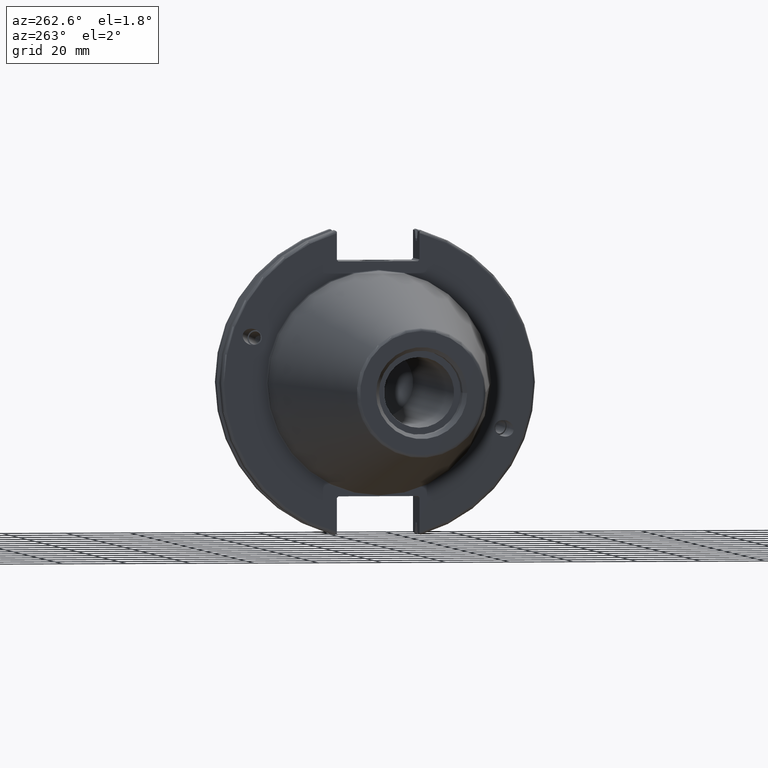
[diagram: clean part render]
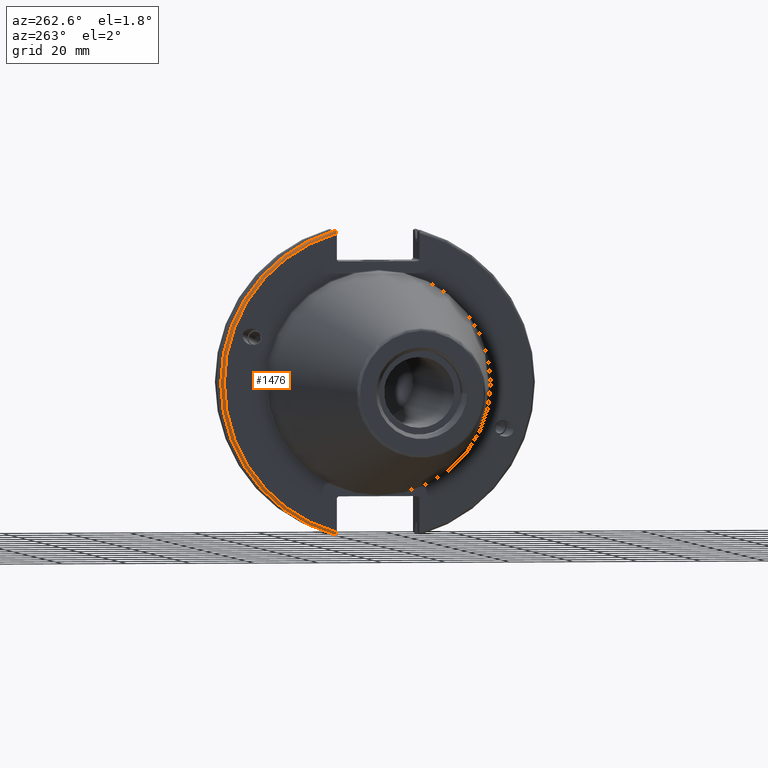
[diagram: same view with one face highlighted and labeled with its STEP entity id]
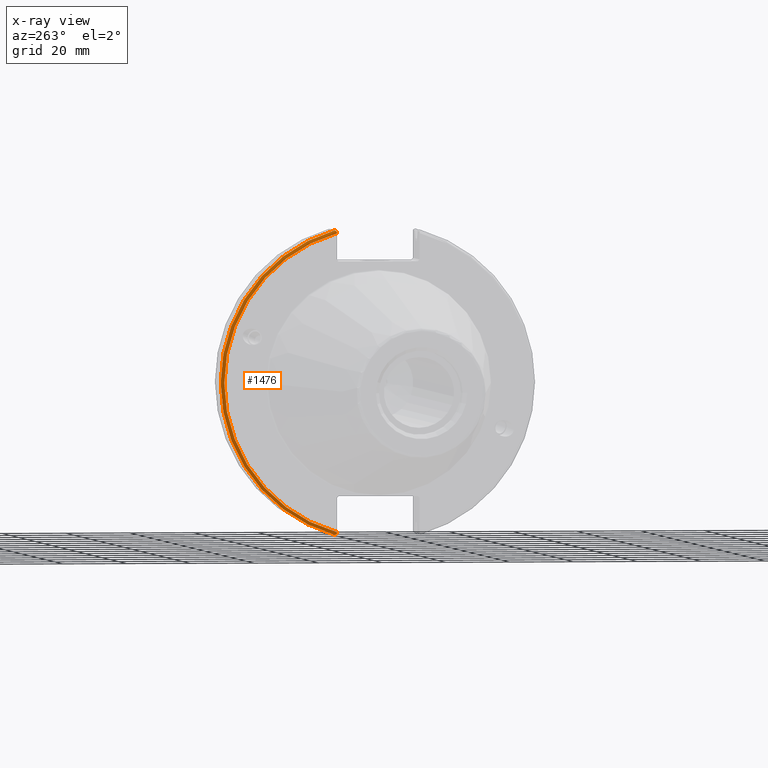
[diagram: x-ray of the same camera — body ghosted, the highlighted face saturated]
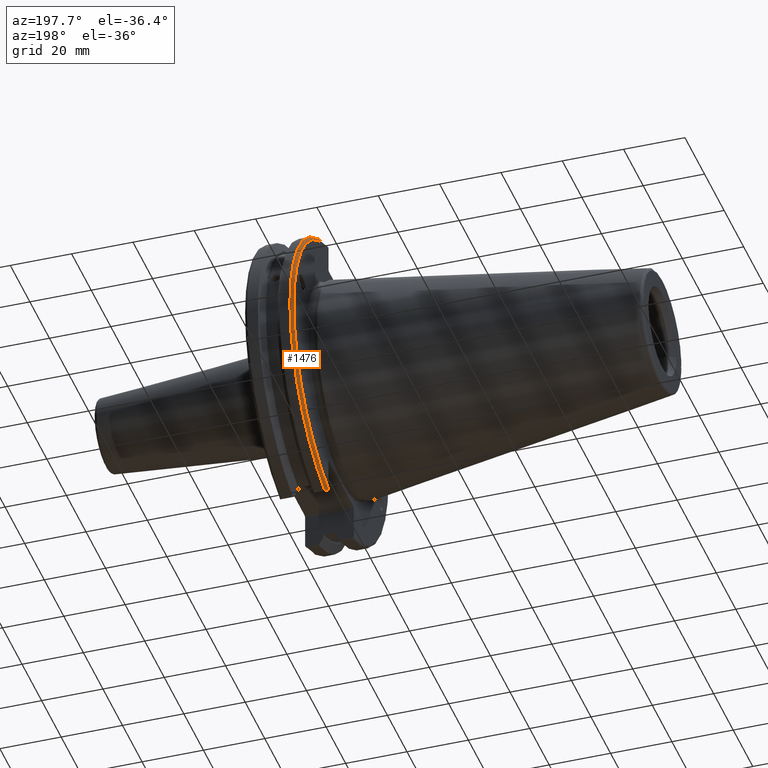
[diagram: same view with one face highlighted and labeled with its STEP entity id]
A machine part, auxiliary view. The second image highlights one B-rep face of the part: STEP entity #1476.
The next image is the same camera in x-ray: the body ghosted, the highlighted face saturated — about 0% of this face is hidden behind the body in this view.
A second angle (auxiliary view) of the same face is appended — the face is thin or edge-on in the first view.
In plain terms, the highlighted toroidal blend (fillet) surface has major radius 48.2125 mm and minor (blend) radius 1 mm.
Its self-contained STEP definition (entity closure, byte-faithful):
#59=B_SPLINE_CURVE_WITH_KNOTS('',3,(#2797,#2798,#2799,#2800,#2801,#2802),
 .UNSPECIFIED.,.F.,.F.,(4,2,4),(0.0976892167532858,0.112000071948292,0.150881870548587),
 .UNSPECIFIED.);
#68=B_SPLINE_CURVE_WITH_KNOTS('',3,(#2914,#2915,#2916,#2917,#2918,#2919,
#2920,#2921),.UNSPECIFIED.,.F.,.F.,(4,2,2,4),(-0.104075769062722,-0.0730268503455479,
-0.0343639873656265,0.),.UNSPECIFIED.);
#69=B_SPLINE_CURVE_WITH_KNOTS('',3,(#2924,#2925,#2926,#2927,#2928,#2929,
#2930,#2931),.UNSPECIFIED.,.F.,.F.,(4,2,2,4),(0.,0.0343639873656266,0.0730268503455482,
0.104075769062722),.UNSPECIFIED.);
#70=B_SPLINE_CURVE_WITH_KNOTS('',3,(#2932,#2933,#2934,#2935,#2936,#2937),
 .UNSPECIFIED.,.F.,.F.,(4,2,4),(0.452859340315923,0.491741138916218,0.506051994111224),
 .UNSPECIFIED.);
#397=FACE_OUTER_BOUND('',#498,.T.);
#498=EDGE_LOOP('',(#1267,#1268,#1269,#1270,#1271,#1272));
#584=CIRCLE('',#1624,48.2125);
#590=CIRCLE('',#1642,49.2125);
#709=VERTEX_POINT('',#2735);
#710=VERTEX_POINT('',#2737);
#722=VERTEX_POINT('',#2796);
#738=VERTEX_POINT('',#2912);
#739=VERTEX_POINT('',#2913);
#740=VERTEX_POINT('',#2922);
#886=EDGE_CURVE('',#710,#709,#584,.T.);
#903=EDGE_CURVE('',#722,#710,#59,.T.);
#932=EDGE_CURVE('',#738,#739,#68,.T.);
#933=EDGE_CURVE('',#739,#740,#590,.T.);
#934=EDGE_CURVE('',#740,#722,#69,.T.);
#935=EDGE_CURVE('',#709,#738,#70,.T.);
#1267=ORIENTED_EDGE('',*,*,#932,.T.);
#1268=ORIENTED_EDGE('',*,*,#933,.T.);
#1269=ORIENTED_EDGE('',*,*,#934,.T.);
#1270=ORIENTED_EDGE('',*,*,#903,.T.);
#1271=ORIENTED_EDGE('',*,*,#886,.T.);
#1272=ORIENTED_EDGE('',*,*,#935,.T.);
#1423=TOROIDAL_SURFACE('',#1641,48.2125,1.);
#1476=ADVANCED_FACE('',(#397),#1423,.T.);
#1624=AXIS2_PLACEMENT_3D('',#2738,#1926,#1927);
#1641=AXIS2_PLACEMENT_3D('',#2911,#1981,#1982);
#1642=AXIS2_PLACEMENT_3D('',#2923,#1983,#1984);
#1926=DIRECTION('center_axis',(1.,0.,0.));
#1927=DIRECTION('ref_axis',(0.,1.,-6.12323399573677E-17));
#1981=DIRECTION('center_axis',(1.,0.,0.));
#1982=DIRECTION('ref_axis',(0.,0.,-1.));
#1983=DIRECTION('center_axis',(-1.,0.,0.));
#1984=DIRECTION('ref_axis',(0.,1.,-6.12323399573677E-17));
#2735=CARTESIAN_POINT('',(3.175,12.95,46.4407434937254));
#2737=CARTESIAN_POINT('',(3.175,12.95,-46.4407434937254));
#2738=CARTESIAN_POINT('Origin',(3.175,0.,0.));
#2796=CARTESIAN_POINT('',(3.31949794294344,12.95,-46.9780755322918));
#2797=CARTESIAN_POINT('Ctrl Pts',(3.31949794294344,12.95,-46.9780755322918));
#2798=CARTESIAN_POINT('Ctrl Pts',(3.29341556483839,12.95,-46.9333752207329));
#2799=CARTESIAN_POINT('Ctrl Pts',(3.27115672912336,12.95,-46.887363294568));
#2800=CARTESIAN_POINT('Ctrl Pts',(3.20453530071253,12.95,-46.7230464903732));
#2801=CARTESIAN_POINT('Ctrl Pts',(3.175,12.95,-46.5703494890597));
#2802=CARTESIAN_POINT('Ctrl Pts',(3.175,12.95,-46.4407434937254));
#2911=CARTESIAN_POINT('Origin',(4.175,0.,0.));
#2912=CARTESIAN_POINT('',(3.31949794294344,12.95,46.9780755322918));
#2913=CARTESIAN_POINT('',(4.175,13.4317035994433,47.3440544806494));
#2914=CARTESIAN_POINT('Ctrl Pts',(3.31949794294344,12.95,46.9780755322918));
#2915=CARTESIAN_POINT('Ctrl Pts',(3.36785032278754,13.0300321736484,47.0388807469102));
#2916=CARTESIAN_POINT('Ctrl Pts',(3.43235971798504,13.1083611826073,47.0983919657547));
#2917=CARTESIAN_POINT('Ctrl Pts',(3.58507512107923,13.2478194810695,47.2043467509586));
#2918=CARTESIAN_POINT('Ctrl Pts',(3.70638116490965,13.3242014686233,47.2623787015413));
#2919=CARTESIAN_POINT('Ctrl Pts',(3.92661103245834,13.4067722493645,47.3251126473446));
#2920=CARTESIAN_POINT('Ctrl Pts',(4.06045337544791,13.4317035994433,47.3440544806494));
#2921=CARTESIAN_POINT('Ctrl Pts',(4.175,13.4317035994433,47.3440544806494));
#2922=CARTESIAN_POINT('',(4.175,13.4317035994433,-47.3440544806494));
#2923=CARTESIAN_POINT('Origin',(4.175,0.,0.));
#2924=CARTESIAN_POINT('Ctrl Pts',(4.175,13.4317035994433,-47.3440544806494));
#2925=CARTESIAN_POINT('Ctrl Pts',(4.06045337544791,13.4317035994433,-47.3440544806494));
#2926=CARTESIAN_POINT('Ctrl Pts',(3.92661103245834,13.4067722493645,-47.3251126473446));
#2927=CARTESIAN_POINT('Ctrl Pts',(3.70638116490964,13.3242014686232,-47.2623787015413));
#2928=CARTESIAN_POINT('Ctrl Pts',(3.58507512107923,13.2478194810695,-47.2043467509586));
#2929=CARTESIAN_POINT('Ctrl Pts',(3.43235971798504,13.1083611826073,-47.0983919657547));
#2930=CARTESIAN_POINT('Ctrl Pts',(3.36785032278754,13.0300321736484,-47.0388807469102));
#2931=CARTESIAN_POINT('Ctrl Pts',(3.31949794294344,12.95,-46.9780755322918));
#2932=CARTESIAN_POINT('Ctrl Pts',(3.175,12.95,46.4407434937254));
#2933=CARTESIAN_POINT('Ctrl Pts',(3.175,12.95,46.5703494890597));
#2934=CARTESIAN_POINT('Ctrl Pts',(3.20453530071253,12.95,46.7230464903732));
#2935=CARTESIAN_POINT('Ctrl Pts',(3.27115672912336,12.95,46.887363294568));
#2936=CARTESIAN_POINT('Ctrl Pts',(3.29341556483839,12.95,46.9333752207329));
#2937=CARTESIAN_POINT('Ctrl Pts',(3.31949794294344,12.95,46.9780755322918));